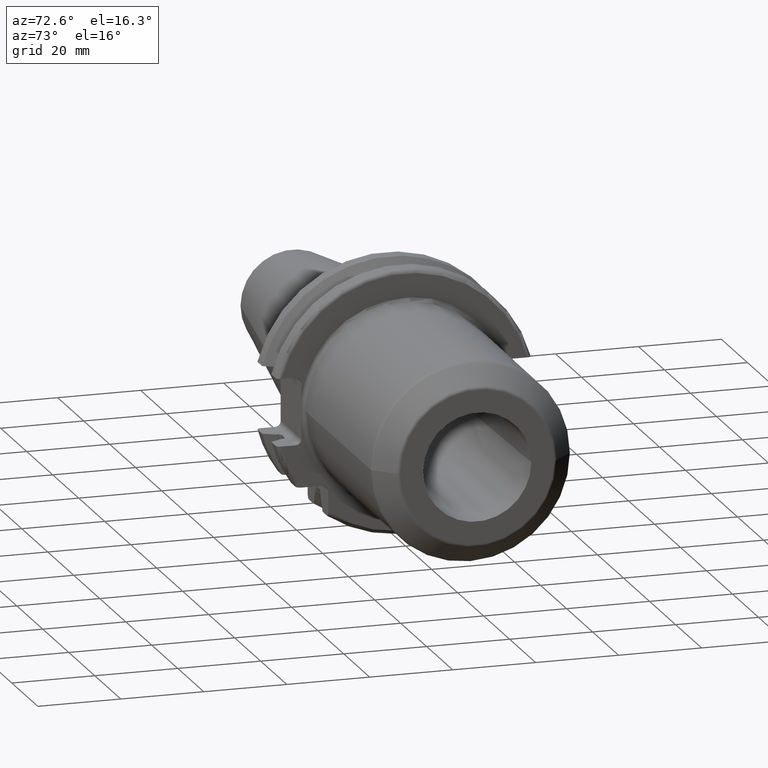
[diagram: clean part render]
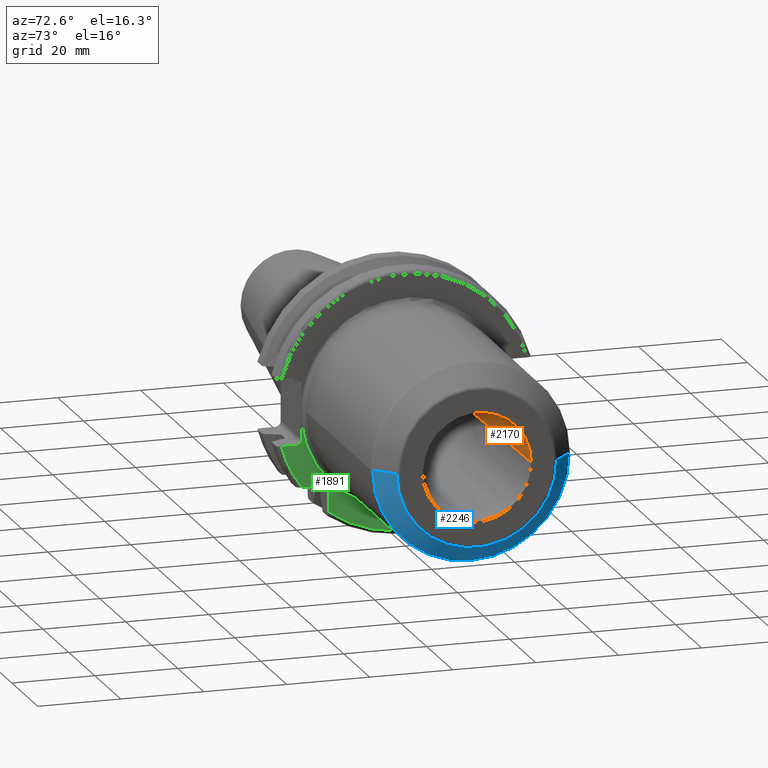
[diagram: same view with three faces highlighted in distinct colors, each labeled with its STEP entity id]
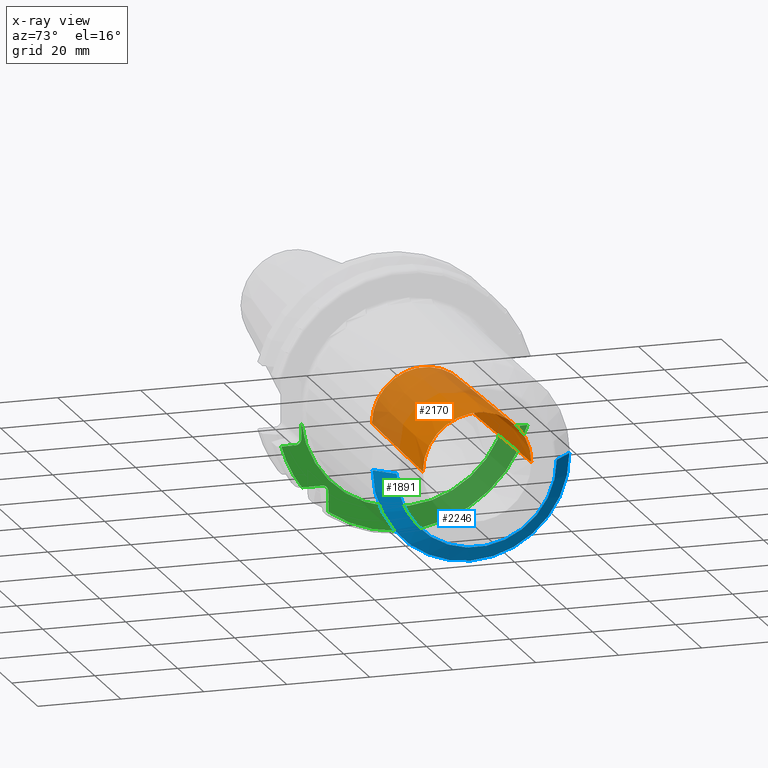
[diagram: x-ray of the same camera — body ghosted, the three highlighted faces saturated]
A machine part, auxiliary view with three faces highlighted in distinct colors.
The next image is the same camera in x-ray (body ghosted, the three faces saturated) — at least one of them is partly hidden behind the body in this view.
Their STEP definitions:

[orange] entity #2170 — the highlighted conical surface has half-angle 0.985 deg.
#374=CARTESIAN_POINT('',(7.5E1,0.E0,0.E0));
#375=DIRECTION('',(1.E0,0.E0,0.E0));
#376=DIRECTION('',(0.E0,1.E0,0.E0));
#377=AXIS2_PLACEMENT_3D('',#374,#375,#376);
#394=DIRECTION('',(-9.998521465673E-1,1.719549373433E-2,0.E0));
#395=VECTOR('',#394,4.149342909390E1);
#396=CARTESIAN_POINT('',(7.5E1,-1.30735E1,0.E0));
#397=LINE('',#396,#395);
#398=DIRECTION('',(-9.998521465673E-1,-1.719549373433E-2,0.E0));
#399=VECTOR('',#398,4.149342909390E1);
#400=CARTESIAN_POINT('',(7.5E1,1.30735E1,0.E0));
#401=LINE('',#400,#399);
#415=CARTESIAN_POINT('',(3.351270585203E1,0.E0,0.E0));
#416=DIRECTION('',(1.E0,0.E0,0.E0));
#417=DIRECTION('',(0.E0,1.E0,0.E0));
#418=AXIS2_PLACEMENT_3D('',#415,#416,#417);
#1594=CARTESIAN_POINT('',(3.351270585203E1,1.236E1,0.E0));
#1596=VERTEX_POINT('',#1594);
#1598=CARTESIAN_POINT('',(3.351270585203E1,-1.236E1,0.E0));
#1600=VERTEX_POINT('',#1598);
#1602=CARTESIAN_POINT('',(7.5E1,1.30735E1,0.E0));
#1603=CARTESIAN_POINT('',(7.5E1,-1.30735E1,0.E0));
#1604=VERTEX_POINT('',#1602);
#1605=VERTEX_POINT('',#1603);
#2156=CARTESIAN_POINT('',(5.425635292602E1,0.E0,0.E0));
#2157=DIRECTION('',(1.E0,0.E0,0.E0));
#2158=DIRECTION('',(0.E0,-1.E0,0.E0));
#2159=AXIS2_PLACEMENT_3D('',#2156,#2157,#2158);
#2160=CONICAL_SURFACE('',#2159,1.271675E1,9.85277777E-1);
#2161=ORIENTED_EDGE('',*,*,#2149,.F.);
#2163=ORIENTED_EDGE('',*,*,#2162,.T.);
#2165=ORIENTED_EDGE('',*,*,#2164,.T.);
#2167=ORIENTED_EDGE('',*,*,#2166,.F.);
#2168=EDGE_LOOP('',(#2161,#2163,#2165,#2167));
#2169=FACE_OUTER_BOUND('',#2168,.F.);
#2170=ADVANCED_FACE('',(#2169),#2160,.F.);
#378=CIRCLE('',#377,1.30735E1);
#419=CIRCLE('',#418,1.236E1);
#2149=EDGE_CURVE('',#1604,#1605,#378,.T.);
#2162=EDGE_CURVE('',#1604,#1596,#401,.T.);
#2164=EDGE_CURVE('',#1596,#1600,#419,.T.);
#2166=EDGE_CURVE('',#1605,#1600,#397,.T.);

[blue] entity #2246 — the highlighted conical surface has half-angle 45 deg.
#360=DIRECTION('',(7.071067811865E-1,7.071067811865E-1,1.111721380293E-10));
#361=VECTOR('',#360,6.242640687118E0);
#362=CARTESIAN_POINT('',(7.029289321881E1,-2.370710678119E1,
-3.764420848767E-9));
#363=LINE('',#362,#361);
#435=CARTESIAN_POINT('',(7.470710678119E1,0.E0,0.E0));
#436=DIRECTION('',(1.E0,0.E0,0.E0));
#437=DIRECTION('',(0.E0,-1.E0,1.003058175054E-11));
#438=AXIS2_PLACEMENT_3D('',#435,#436,#437);
#440=DIRECTION('',(7.071067811865E-1,-7.071067811865E-1,-1.111723132371E-10));
#441=VECTOR('',#440,6.242640687118E0);
#442=CARTESIAN_POINT('',(7.029289321881E1,2.370710678119E1,3.764424091407E-9));
#443=LINE('',#442,#441);
#444=CARTESIAN_POINT('',(7.029289321881E1,0.E0,0.E0));
#445=DIRECTION('',(-1.E0,0.E0,0.E0));
#446=DIRECTION('',(0.E0,1.E0,-1.003070421522E-11));
#447=AXIS2_PLACEMENT_3D('',#444,#445,#446);
#1610=CARTESIAN_POINT('',(7.470710678119E1,-1.929289321881E1,
1.935189426358E-10));
#1611=CARTESIAN_POINT('',(7.470710678119E1,1.929289321881E1,
-1.935213053338E-10));
#1612=VERTEX_POINT('',#1610);
#1613=VERTEX_POINT('',#1611);
#1618=CARTESIAN_POINT('',(7.029289321881E1,2.370710678119E1,
-2.377989759208E-10));
#1619=CARTESIAN_POINT('',(7.029289321881E1,-2.370710678119E1,
2.377960726376E-10));
#1620=VERTEX_POINT('',#1618);
#1621=VERTEX_POINT('',#1619);
#2235=CARTESIAN_POINT('',(7.25E1,0.E0,0.E0));
#2236=DIRECTION('',(-1.E0,0.E0,0.E0));
#2237=DIRECTION('',(0.E0,0.E0,-1.E0));
#2238=AXIS2_PLACEMENT_3D('',#2235,#2236,#2237);
#2239=CONICAL_SURFACE('',#2238,2.15E1,4.5E1);
#2240=ORIENTED_EDGE('',*,*,#2229,.T.);
#2241=ORIENTED_EDGE('',*,*,#2119,.F.);
#2242=ORIENTED_EDGE('',*,*,#2089,.T.);
#2243=ORIENTED_EDGE('',*,*,#2116,.T.);
#2244=EDGE_LOOP('',(#2240,#2241,#2242,#2243));
#2245=FACE_OUTER_BOUND('',#2244,.F.);
#2246=ADVANCED_FACE('',(#2245),#2239,.T.);
#439=CIRCLE('',#438,1.929289321881E1);
#448=CIRCLE('',#447,2.370710678119E1);
#2089=EDGE_CURVE('',#1620,#1621,#448,.T.);
#2116=EDGE_CURVE('',#1621,#1612,#363,.T.);
#2119=EDGE_CURVE('',#1620,#1613,#443,.T.);
#2229=EDGE_CURVE('',#1612,#1613,#439,.T.);

[green] entity #1891 — the highlighted planar face has unit normal (1, 0, 0).
#126=DIRECTION('',(0.E0,0.E0,1.E0));
#127=VECTOR('',#126,4.043400761576E0);
#128=CARTESIAN_POINT('',(1.905E1,2.255E1,-1.079340076158E1));
#129=LINE('',#128,#127);
#169=CARTESIAN_POINT('',(1.905E1,0.E0,0.E0));
#170=DIRECTION('',(1.E0,0.E0,0.E0));
#171=DIRECTION('',(0.E0,-9.939925810213E-1,-1.094474708462E-1));
#172=AXIS2_PLACEMENT_3D('',#169,#170,#171);
#174=CARTESIAN_POINT('',(1.905E1,2.39E1,-6.75E0));
#175=DIRECTION('',(1.E0,0.E0,0.E0));
#176=DIRECTION('',(0.E0,-1.E0,0.E0));
#177=AXIS2_PLACEMENT_3D('',#174,#175,#176);
#179=DIRECTION('',(0.E0,-1.E0,0.E0));
#180=VECTOR('',#179,5.776950757280E0);
#181=CARTESIAN_POINT('',(1.905E1,2.967695075728E1,-8.1E0));
#182=LINE('',#181,#180);
#183=DIRECTION('',(0.E0,0.E0,1.E0));
#184=VECTOR('',#183,4.990259339464E0);
#185=CARTESIAN_POINT('',(1.905E1,-1.835E1,-2.469025933946E1));
#186=LINE('',#185,#184);
#187=DIRECTION('',(0.E0,-1.E0,0.E0));
#188=VECTOR('',#187,4.990259339464E0);
#189=CARTESIAN_POINT('',(1.905E1,-1.97E1,-1.835E1));
#190=LINE('',#189,#188);
#191=DIRECTION('',(0.E0,1.E0,0.E0));
#192=VECTOR('',#191,3.476950757280E0);
#193=CARTESIAN_POINT('',(1.905E1,-2.967695075728E1,-8.1E0));
#194=LINE('',#193,#192);
#195=DIRECTION('',(0.E0,1.010768321055E-6,9.999999999995E-1));
#196=VECTOR('',#195,4.014892869179E0);
#197=CARTESIAN_POINT('',(1.905E1,-2.485E1,-6.75E0));
#198=LINE('',#197,#196);
#257=CARTESIAN_POINT('',(1.905E1,2.255E1,-1.079340076158E1));
#449=CARTESIAN_POINT('',(1.905E1,-2.62E1,-6.75E0));
#450=DIRECTION('',(-1.E0,0.E0,0.E0));
#451=DIRECTION('',(0.E0,1.E0,0.E0));
#452=AXIS2_PLACEMENT_3D('',#449,#450,#451);
#472=CARTESIAN_POINT('',(1.905E1,2.967695075728E1,-8.1E0));
#485=CARTESIAN_POINT('',(1.905E1,0.E0,0.E0));
#486=DIRECTION('',(-1.E0,0.E0,0.E0));
#487=DIRECTION('',(0.E0,9.647119303464E-1,-2.633075985372E-1));
#488=AXIS2_PLACEMENT_3D('',#485,#486,#487);
#490=CARTESIAN_POINT('',(1.905E1,-2.967695075728E1,-8.1E0));
#501=CARTESIAN_POINT('',(1.905E1,0.E0,0.E0));
#502=DIRECTION('',(-1.E0,0.E0,0.E0));
#503=DIRECTION('',(0.E0,-8.026089992512E-1,-5.965054855750E-1));
#504=AXIS2_PLACEMENT_3D('',#501,#502,#503);
#1066=CARTESIAN_POINT('',(1.905E1,-1.97E1,-1.97E1));
#1067=DIRECTION('',(-1.E0,0.E0,0.E0));
#1068=DIRECTION('',(0.E0,0.E0,1.E0));
#1069=AXIS2_PLACEMENT_3D('',#1066,#1067,#1068);
#1525=VERTEX_POINT('',#472);
#1526=VERTEX_POINT('',#490);
#1537=CARTESIAN_POINT('',(1.905E1,-1.835E1,-2.469025933946E1));
#1538=VERTEX_POINT('',#1537);
#1545=CARTESIAN_POINT('',(1.905E1,2.39E1,-8.1E0));
#1547=VERTEX_POINT('',#1545);
#1553=CARTESIAN_POINT('',(1.905E1,-2.485E1,-6.75E0));
#1555=VERTEX_POINT('',#1553);
#1557=CARTESIAN_POINT('',(1.905E1,-2.62E1,-8.1E0));
#1559=VERTEX_POINT('',#1557);
#1569=CARTESIAN_POINT('',(1.905E1,-1.97E1,-1.835E1));
#1570=CARTESIAN_POINT('',(1.905E1,-2.469025933946E1,-1.835E1));
#1571=VERTEX_POINT('',#1569);
#1572=VERTEX_POINT('',#1570);
#1573=CARTESIAN_POINT('',(1.905E1,-1.835E1,-1.97E1));
#1574=VERTEX_POINT('',#1573);
#1634=VERTEX_POINT('',#257);
#1636=CARTESIAN_POINT('',(1.905E1,2.255E1,-6.75E0));
#1637=VERTEX_POINT('',#1636);
#1642=CARTESIAN_POINT('',(1.905E1,-2.484999594187E1,-2.735107130823E0));
#1643=VERTEX_POINT('',#1642);
#1862=CARTESIAN_POINT('',(1.905E1,0.E0,0.E0));
#1863=DIRECTION('',(1.E0,0.E0,0.E0));
#1864=DIRECTION('',(0.E0,-1.E0,0.E0));
#1865=AXIS2_PLACEMENT_3D('',#1862,#1863,#1864);
#1866=PLANE('',#1865);
#1868=ORIENTED_EDGE('',*,*,#1867,.T.);
#1869=ORIENTED_EDGE('',*,*,#1798,.T.);
#1870=ORIENTED_EDGE('',*,*,#1829,.T.);
#1872=ORIENTED_EDGE('',*,*,#1871,.F.);
#1874=ORIENTED_EDGE('',*,*,#1873,.T.);
#1876=ORIENTED_EDGE('',*,*,#1875,.T.);
#1878=ORIENTED_EDGE('',*,*,#1877,.F.);
#1880=ORIENTED_EDGE('',*,*,#1879,.T.);
#1882=ORIENTED_EDGE('',*,*,#1881,.T.);
#1884=ORIENTED_EDGE('',*,*,#1883,.T.);
#1886=ORIENTED_EDGE('',*,*,#1885,.F.);
#1888=ORIENTED_EDGE('',*,*,#1887,.T.);
#1889=EDGE_LOOP('',(#1868,#1869,#1870,#1872,#1874,#1876,#1878,#1880,#1882,#1884,
#1886,#1888));
#1890=FACE_OUTER_BOUND('',#1889,.F.);
#1891=ADVANCED_FACE('',(#1890),#1866,.T.);
#173=CIRCLE('',#172,2.5E1);
#178=CIRCLE('',#177,1.35E0);
#453=CIRCLE('',#452,1.35E0);
#489=CIRCLE('',#488,3.07625E1);
#505=CIRCLE('',#504,3.07625E1);
#1070=CIRCLE('',#1069,1.35E0);
#1798=EDGE_CURVE('',#1634,#1637,#129,.T.);
#1829=EDGE_CURVE('',#1637,#1547,#178,.T.);
#1867=EDGE_CURVE('',#1643,#1634,#173,.T.);
#1871=EDGE_CURVE('',#1525,#1547,#182,.T.);
#1873=EDGE_CURVE('',#1525,#1538,#489,.T.);
#1875=EDGE_CURVE('',#1538,#1574,#186,.T.);
#1877=EDGE_CURVE('',#1571,#1574,#1070,.T.);
#1879=EDGE_CURVE('',#1571,#1572,#190,.T.);
#1881=EDGE_CURVE('',#1572,#1526,#505,.T.);
#1883=EDGE_CURVE('',#1526,#1559,#194,.T.);
#1885=EDGE_CURVE('',#1555,#1559,#453,.T.);
#1887=EDGE_CURVE('',#1555,#1643,#198,.T.);